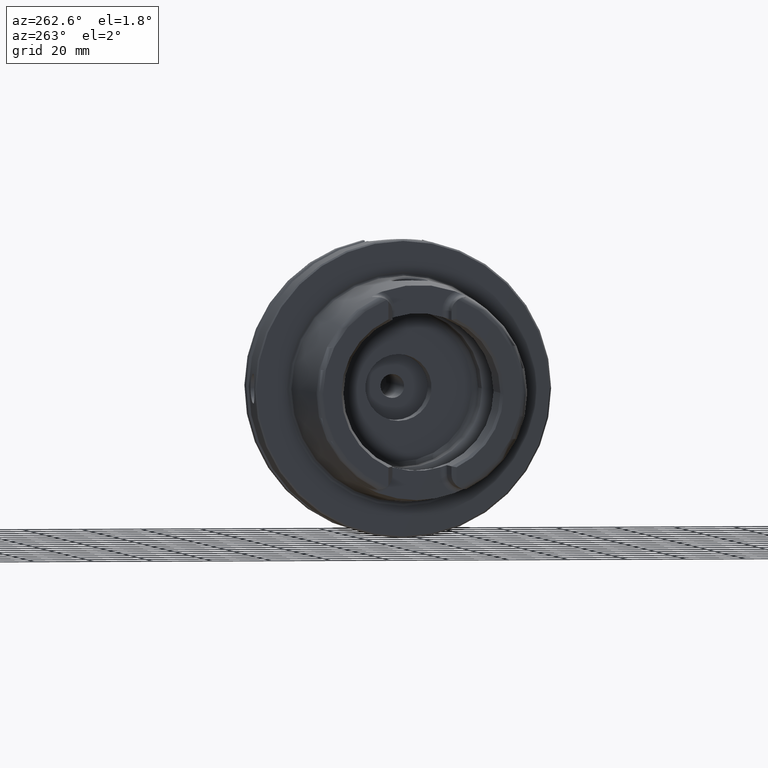
[diagram: clean part render]
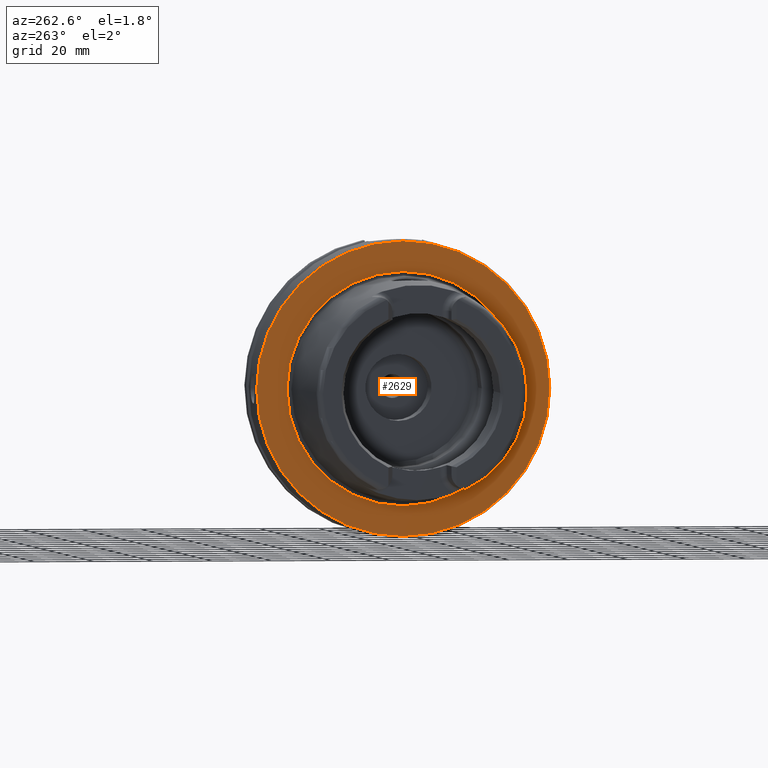
[diagram: same view with one face highlighted and labeled with its STEP entity id]
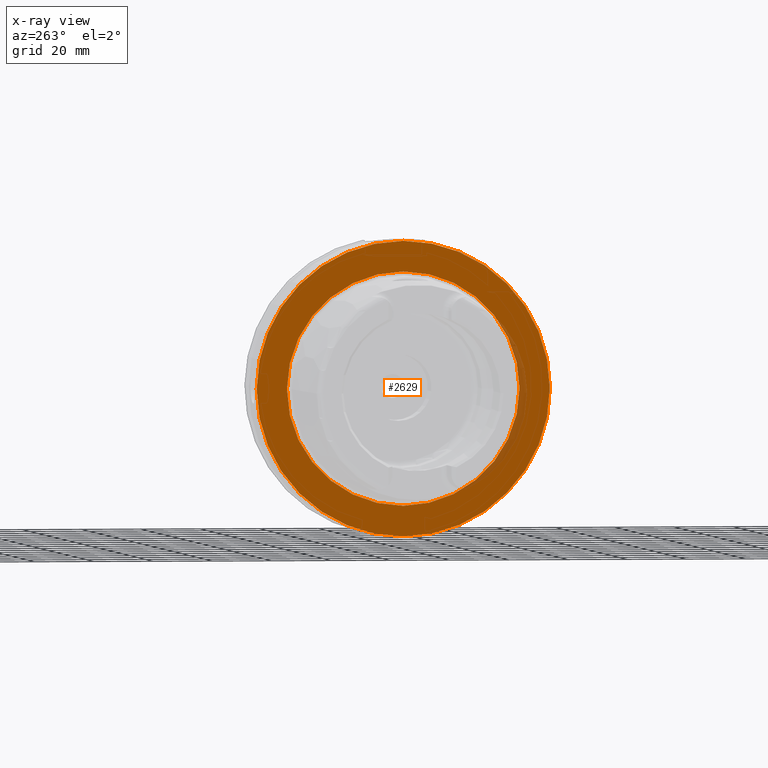
[diagram: x-ray of the same camera — body ghosted, the highlighted face saturated]
A machine part, auxiliary view. The second image highlights one B-rep face of the part: STEP entity #2629.
The next image is the same camera in x-ray: the body ghosted, the highlighted face saturated — about 5% of this face is hidden behind the body in this view.
In plain terms, the highlighted planar face has unit normal (-1, 0, 0).
Its self-contained STEP definition (entity closure, byte-faithful):
#103=FACE_BOUND('',#480,.T.);
#139=PLANE('',#3005);
#335=FACE_OUTER_BOUND('',#479,.T.);
#479=EDGE_LOOP('',(#2430,#2431));
#480=EDGE_LOOP('',(#2432,#2433));
#933=CIRCLE('',#3003,39.2747800249997);
#934=CIRCLE('',#3004,39.2747800249997);
#935=CIRCLE('',#3006,49.5);
#936=CIRCLE('',#3007,49.5);
#1228=VERTEX_POINT('',#5559);
#1229=VERTEX_POINT('',#5561);
#1230=VERTEX_POINT('',#5565);
#1231=VERTEX_POINT('',#5566);
#1635=EDGE_CURVE('',#1229,#1228,#933,.T.);
#1636=EDGE_CURVE('',#1228,#1229,#934,.T.);
#1637=EDGE_CURVE('',#1230,#1231,#935,.T.);
#1638=EDGE_CURVE('',#1231,#1230,#936,.T.);
#2430=ORIENTED_EDGE('',*,*,#1637,.F.);
#2431=ORIENTED_EDGE('',*,*,#1638,.F.);
#2432=ORIENTED_EDGE('',*,*,#1635,.T.);
#2433=ORIENTED_EDGE('',*,*,#1636,.T.);
#2629=ADVANCED_FACE('',(#335,#103),#139,.T.);
#3003=AXIS2_PLACEMENT_3D('',#5562,#3825,#3826);
#3004=AXIS2_PLACEMENT_3D('',#5563,#3827,#3828);
#3005=AXIS2_PLACEMENT_3D('',#5564,#3829,#3830);
#3006=AXIS2_PLACEMENT_3D('',#5567,#3831,#3832);
#3007=AXIS2_PLACEMENT_3D('',#5568,#3833,#3834);
#3825=DIRECTION('center_axis',(1.,0.,0.));
#3826=DIRECTION('ref_axis',(0.,0.,-1.));
#3827=DIRECTION('center_axis',(1.,0.,0.));
#3828=DIRECTION('ref_axis',(0.,0.,-1.));
#3829=DIRECTION('center_axis',(-1.,0.,0.));
#3830=DIRECTION('ref_axis',(0.,0.,1.));
#3831=DIRECTION('center_axis',(1.,0.,0.));
#3832=DIRECTION('ref_axis',(0.,0.,-1.));
#3833=DIRECTION('center_axis',(1.,0.,0.));
#3834=DIRECTION('ref_axis',(0.,0.,-1.));
#5559=CARTESIAN_POINT('',(-1.11889664200504E-15,-39.2747800249997,-4.80977336448322E-15));
#5561=CARTESIAN_POINT('',(0.,39.2747800249997,0.));
#5562=CARTESIAN_POINT('Origin',(0.,0.,0.));
#5563=CARTESIAN_POINT('Origin',(0.,0.,0.));
#5564=CARTESIAN_POINT('Origin',(0.,49.5,0.));
#5565=CARTESIAN_POINT('',(0.,49.5,0.));
#5566=CARTESIAN_POINT('',(1.2490009027033E-15,-49.5,-6.0620016557794E-15));
#5567=CARTESIAN_POINT('Origin',(0.,0.,0.));
#5568=CARTESIAN_POINT('Origin',(0.,0.,0.));